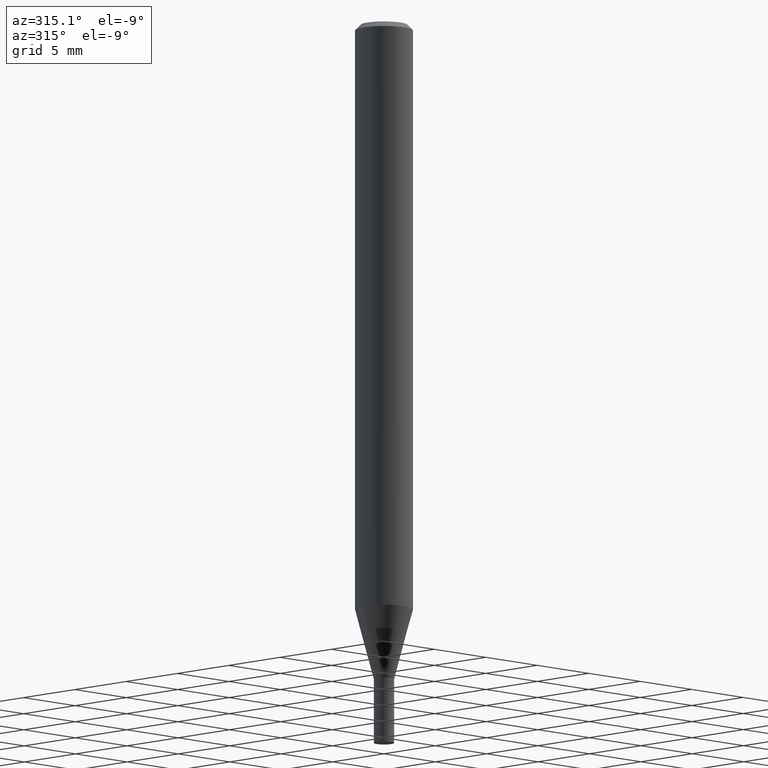
[diagram: clean part render]
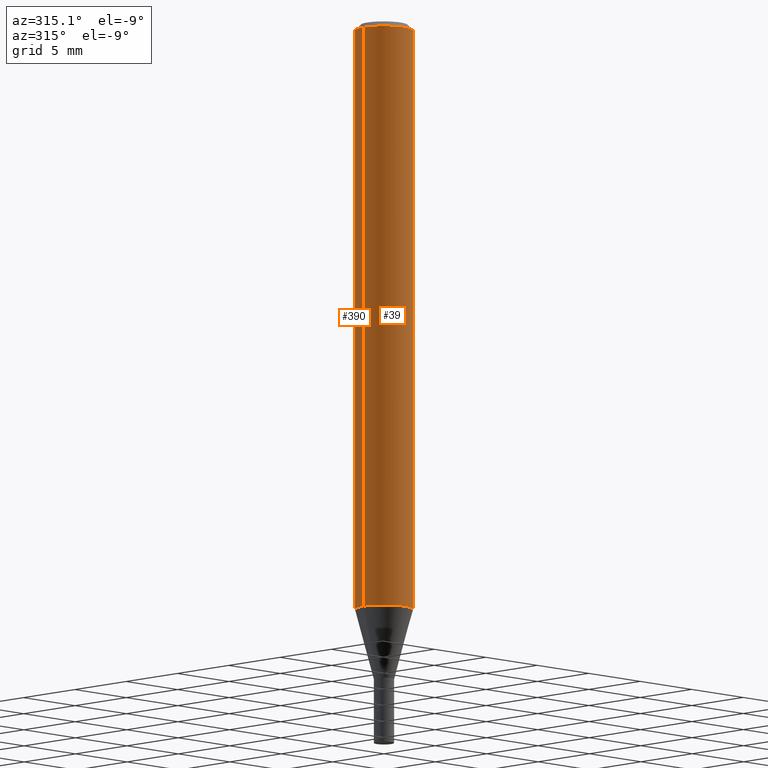
[diagram: same view with one multi-face feature highlighted, each face labeled with its STEP entity id]
A machine part, auxiliary view. The highlighted faces form ONE feature: a constant-radius fillet chain: 2 tangent blend faces with common blend radius 2.0002 mm. The faces share edges in the B-rep.
Their STEP definitions:
[1] entity #39 (Cylinder):
#6 = DIRECTION ( 'NONE',  ( 1.000000000000000000, -6.982962677686265922E-15, 0.000000000000000000 ) ) ;
#23 = CARTESIAN_POINT ( 'NONE',  ( -0.07875000000000000056, -5.035263626391749269E-15, -1.602418998652472615 ) ) ;
#28 = LINE ( 'NONE', #180, #152 ) ;
#39 = ADVANCED_FACE ( 'NONE', ( #212 ), #346, .T. ) ;
#58 = DIRECTION ( 'NONE',  ( -2.445468806185136877E-29, 3.491481338843145188E-15, 1.000000000000000000 ) ) ;
#65 = CARTESIAN_POINT ( 'NONE',  ( 0.07875000000000000056, -6.144724341670621417E-15, -1.602418998652472615 ) ) ;
#74 = EDGE_CURVE ( 'NONE', #438, #328, #302, .T. ) ;
#92 = ORIENTED_EDGE ( 'NONE', *, *, #298, .T. ) ;
#109 = CARTESIAN_POINT ( 'NONE',  ( -0.07875000000000000056, 5.595524044110789003E-16, -3.873661383575737792E-30 ) ) ;
#126 = EDGE_LOOP ( 'NONE', ( #166, #411, #92, #334 ) ) ;
#152 = VECTOR ( 'NONE', #281, 39.37007874015748143 ) ;
#155 = EDGE_CURVE ( 'NONE', #189, #313, #272, .T. ) ;
#166 = ORIENTED_EDGE ( 'NONE', *, *, #341, .F. ) ;
#176 = CARTESIAN_POINT ( 'NONE',  ( 3.918665675643044057E-29, -5.594816030802827282E-15, -1.602418998652472615 ) ) ;
#180 = CARTESIAN_POINT ( 'NONE',  ( 0.07875000000000000056, -5.499083108677934443E-16, 3.839989210939299016E-30 ) ) ;
#189 = VERTEX_POINT ( 'NONE', #365 ) ;
#196 = AXIS2_PLACEMENT_3D ( 'NONE', #343, #453, #6 ) ;
#212 = FACE_OUTER_BOUND ( 'NONE', #126, .T. ) ;
#216 = DIRECTION ( 'NONE',  ( -2.445468806185136597E-29, 3.491481338843145583E-15, 1.000000000000000000 ) ) ;
#272 = CIRCLE ( 'NONE', #196, 0.07875000000000000056 ) ;
#281 = DIRECTION ( 'NONE',  ( -2.445468806185136877E-29, 3.491481338843145188E-15, 1.000000000000000000 ) ) ;
#298 = EDGE_CURVE ( 'NONE', #328, #313, #28, .T. ) ;
#302 = CIRCLE ( 'NONE', #435, 0.07875000000000000056 ) ;
#312 = AXIS2_PLACEMENT_3D ( 'NONE', #416, #216, #449 ) ;
#313 = VERTEX_POINT ( 'NONE', #319 ) ;
#319 = CARTESIAN_POINT ( 'NONE',  ( 0.07875000000000000056, -6.022805309504406221E-16, -0.01499999999999999944 ) ) ;
#328 = VERTEX_POINT ( 'NONE', #65 ) ;
#334 = ORIENTED_EDGE ( 'NONE', *, *, #155, .F. ) ;
#340 = LINE ( 'NONE', #109, #408 ) ;
#341 = EDGE_CURVE ( 'NONE', #438, #189, #340, .T. ) ;
#343 = CARTESIAN_POINT ( 'NONE',  ( 3.668203209277705088E-31, -5.237222008264718399E-17, -0.01499999999999999944 ) ) ;
#346 = CYLINDRICAL_SURFACE ( 'NONE', #312, 0.07875000000000000056 ) ;
#365 = CARTESIAN_POINT ( 'NONE',  ( -0.07875000000000000056, -2.264041721031658971E-15, -0.01499999999999999944 ) ) ;
#382 = DIRECTION ( 'NONE',  ( 1.000000000000000000, -6.982962677686261977E-15, 0.000000000000000000 ) ) ;
#398 = DIRECTION ( 'NONE',  ( -2.445468806185136597E-29, 3.491481338843145583E-15, 1.000000000000000000 ) ) ;
#408 = VECTOR ( 'NONE', #58, 39.37007874015748143 ) ;
#411 = ORIENTED_EDGE ( 'NONE', *, *, #74, .T. ) ;
#416 = CARTESIAN_POINT ( 'NONE',  ( 0.000000000000000000, 0.000000000000000000, 0.000000000000000000 ) ) ;
#435 = AXIS2_PLACEMENT_3D ( 'NONE', #176, #398, #382 ) ;
#438 = VERTEX_POINT ( 'NONE', #23 ) ;
#449 = DIRECTION ( 'NONE',  ( 1.000000000000000000, -6.982962677686265922E-15, 4.876176775795935232E-29 ) ) ;
#453 = DIRECTION ( 'NONE',  ( -2.445468806185136597E-29, 3.491481338843145583E-15, 1.000000000000000000 ) ) ;
[2] entity #390 (Cylinder):
#23 = CARTESIAN_POINT ( 'NONE',  ( -0.07875000000000000056, -5.035263626391749269E-15, -1.602418998652472615 ) ) ;
#27 = DIRECTION ( 'NONE',  ( -2.445468806185136597E-29, 3.491481338843145583E-15, 1.000000000000000000 ) ) ;
#28 = LINE ( 'NONE', #180, #152 ) ;
#30 = CARTESIAN_POINT ( 'NONE',  ( 3.668203209277705088E-31, -5.237222008264718399E-17, -0.01499999999999999944 ) ) ;
#48 = EDGE_CURVE ( 'NONE', #328, #438, #185, .T. ) ;
#58 = DIRECTION ( 'NONE',  ( -2.445468806185136877E-29, 3.491481338843145188E-15, 1.000000000000000000 ) ) ;
#65 = CARTESIAN_POINT ( 'NONE',  ( 0.07875000000000000056, -6.144724341670621417E-15, -1.602418998652472615 ) ) ;
#89 = ORIENTED_EDGE ( 'NONE', *, *, #48, .T. ) ;
#95 = DIRECTION ( 'NONE',  ( 1.000000000000000000, -6.982962677686265922E-15, 0.000000000000000000 ) ) ;
#109 = CARTESIAN_POINT ( 'NONE',  ( -0.07875000000000000056, 5.595524044110789003E-16, -3.873661383575737792E-30 ) ) ;
#128 = CYLINDRICAL_SURFACE ( 'NONE', #190, 0.07875000000000000056 ) ;
#132 = CARTESIAN_POINT ( 'NONE',  ( 3.918665675643044057E-29, -5.594816030802827282E-15, -1.602418998652472615 ) ) ;
#152 = VECTOR ( 'NONE', #281, 39.37007874015748143 ) ;
#165 = DIRECTION ( 'NONE',  ( 1.000000000000000000, -6.982962677686265922E-15, 4.876176775795935232E-29 ) ) ;
#180 = CARTESIAN_POINT ( 'NONE',  ( 0.07875000000000000056, -5.499083108677934443E-16, 3.839989210939299016E-30 ) ) ;
#185 = CIRCLE ( 'NONE', #386, 0.07875000000000000056 ) ;
#189 = VERTEX_POINT ( 'NONE', #365 ) ;
#190 = AXIS2_PLACEMENT_3D ( 'NONE', #263, #379, #165 ) ;
#217 = ORIENTED_EDGE ( 'NONE', *, *, #368, .F. ) ;
#225 = EDGE_LOOP ( 'NONE', ( #89, #339, #217, #444 ) ) ;
#230 = DIRECTION ( 'NONE',  ( -2.445468806185136597E-29, 3.491481338843145583E-15, 1.000000000000000000 ) ) ;
#235 = FACE_OUTER_BOUND ( 'NONE', #225, .T. ) ;
#259 = CIRCLE ( 'NONE', #378, 0.07875000000000000056 ) ;
#263 = CARTESIAN_POINT ( 'NONE',  ( 0.000000000000000000, 0.000000000000000000, 0.000000000000000000 ) ) ;
#281 = DIRECTION ( 'NONE',  ( -2.445468806185136877E-29, 3.491481338843145188E-15, 1.000000000000000000 ) ) ;
#298 = EDGE_CURVE ( 'NONE', #328, #313, #28, .T. ) ;
#313 = VERTEX_POINT ( 'NONE', #319 ) ;
#318 = DIRECTION ( 'NONE',  ( 1.000000000000000000, -6.982962677686261977E-15, 0.000000000000000000 ) ) ;
#319 = CARTESIAN_POINT ( 'NONE',  ( 0.07875000000000000056, -6.022805309504406221E-16, -0.01499999999999999944 ) ) ;
#328 = VERTEX_POINT ( 'NONE', #65 ) ;
#339 = ORIENTED_EDGE ( 'NONE', *, *, #341, .T. ) ;
#340 = LINE ( 'NONE', #109, #408 ) ;
#341 = EDGE_CURVE ( 'NONE', #438, #189, #340, .T. ) ;
#365 = CARTESIAN_POINT ( 'NONE',  ( -0.07875000000000000056, -2.264041721031658971E-15, -0.01499999999999999944 ) ) ;
#368 = EDGE_CURVE ( 'NONE', #313, #189, #259, .T. ) ;
#378 = AXIS2_PLACEMENT_3D ( 'NONE', #30, #230, #95 ) ;
#379 = DIRECTION ( 'NONE',  ( -2.445468806185136597E-29, 3.491481338843145583E-15, 1.000000000000000000 ) ) ;
#386 = AXIS2_PLACEMENT_3D ( 'NONE', #132, #27, #318 ) ;
#390 = ADVANCED_FACE ( 'NONE', ( #235 ), #128, .T. ) ;
#408 = VECTOR ( 'NONE', #58, 39.37007874015748143 ) ;
#438 = VERTEX_POINT ( 'NONE', #23 ) ;
#444 = ORIENTED_EDGE ( 'NONE', *, *, #298, .F. ) ;